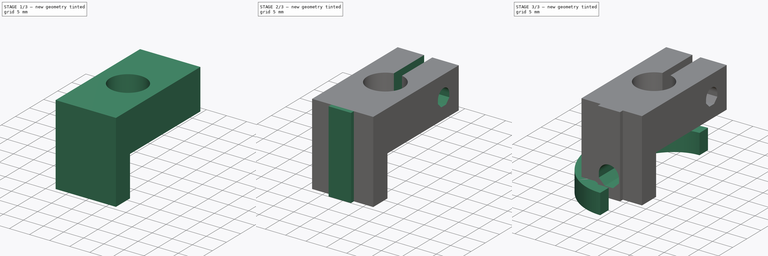
[diagram: build sequence overview — one tinted view per stage of 3, left to right]
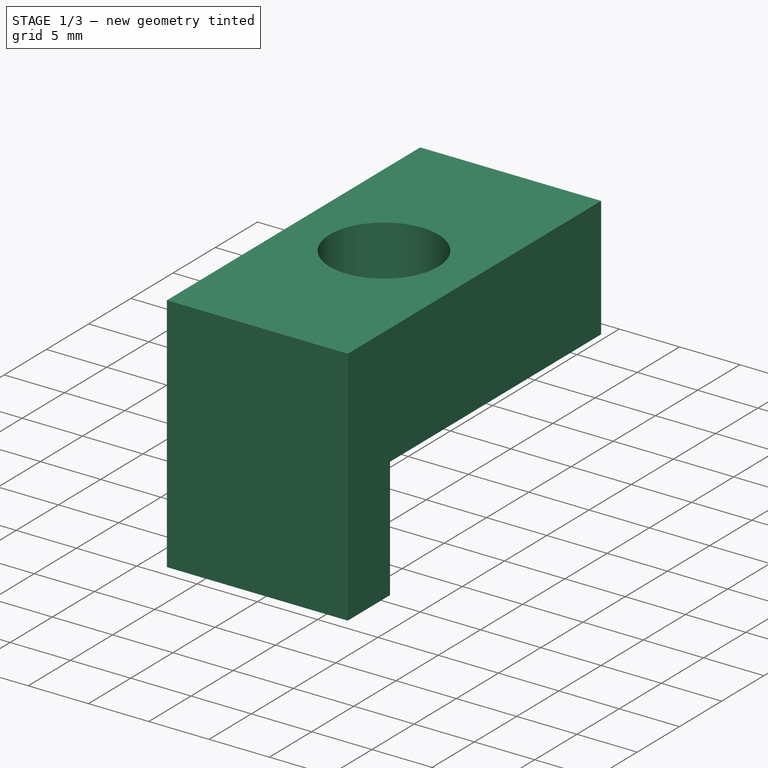
[diagram: stage 1 of 3 — iso view after this stage's code; geometry added in this stage tinted green]
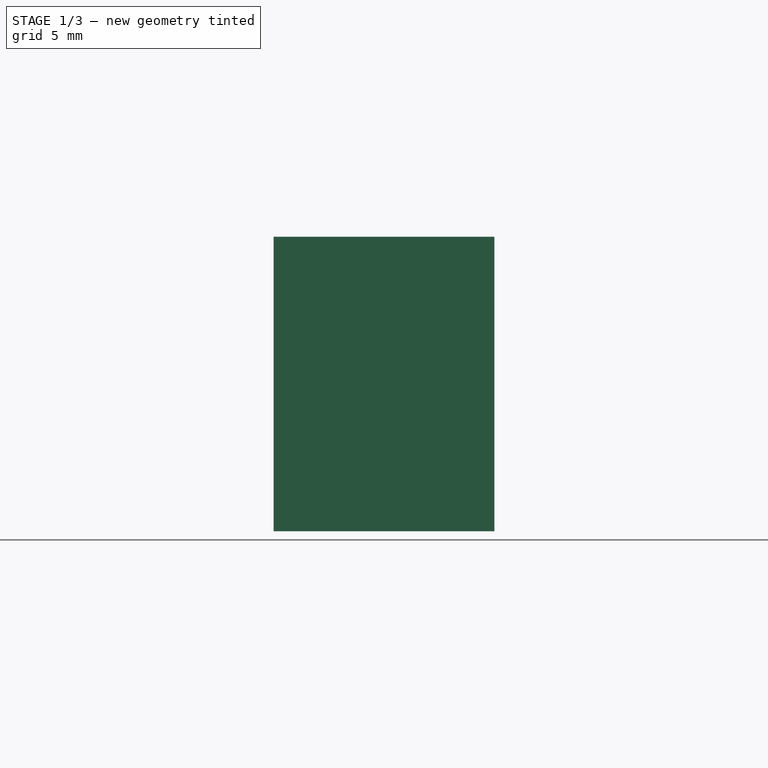
[diagram: stage 1 of 3 — front view after this stage's code; geometry added in this stage tinted green]
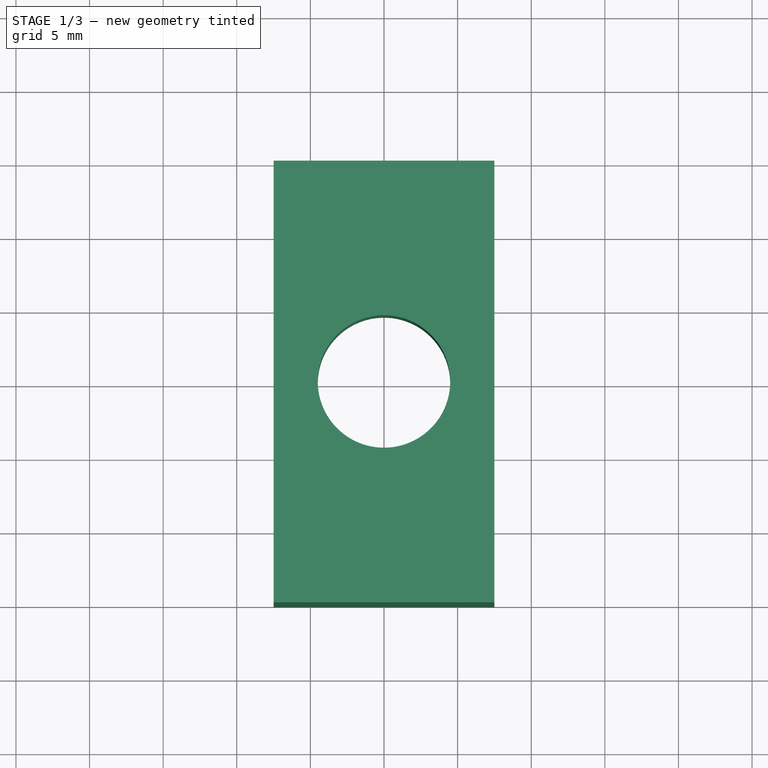
[diagram: stage 1 of 3 — top view after this stage's code; geometry added in this stage tinted green]
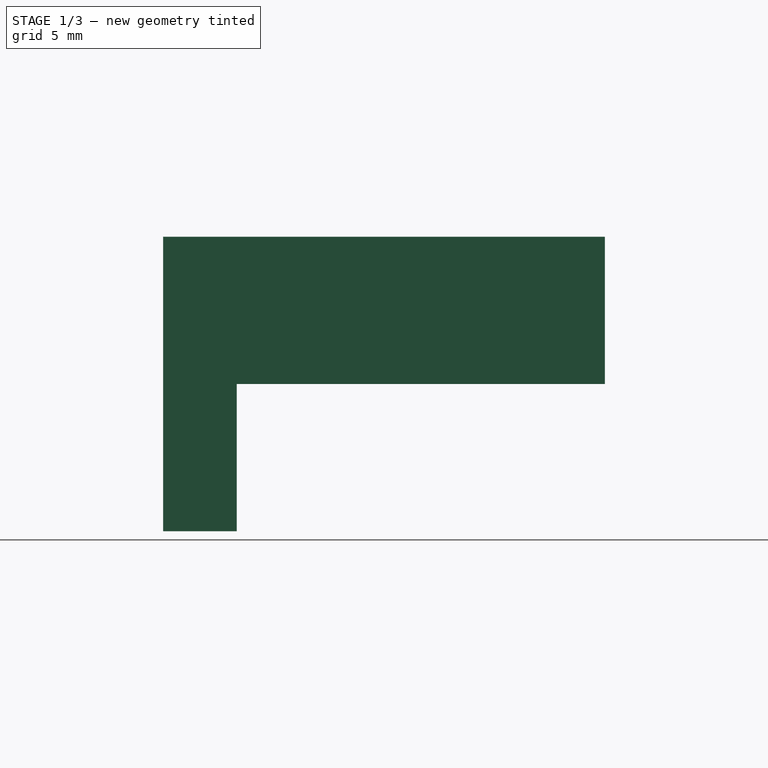
[diagram: stage 1 of 3 — right view after this stage's code; geometry added in this stage tinted green]
FCSTD DOCUMENT  (FreeCAD 0.16R5231 (Git))
Label: BuildPlatformMountingP2
License: All rights reserved
LicenseURL: http://en.wikipedia.org/wiki/All_rights_reserved
objects: Sketcher::SketchObject×8, PartDesign::Pocket×4, PartDesign::Pad×2, Part::Sweep×1, App::DocumentObjectGroup×1
note: 21 computed .brp shape members not serialized (recipe doc carries the construction recipe); baked Part::Feature solids carry a one-line shape summary decoded from their .brp

FEATURE [App::DocumentObjectGroup] Gruppe  label="bak"
  Group = -> [Sketch004,Sweep]
FEATURE [Sketcher::SketchObject] Sketch
  sketch-geometry (5):
    g0: Circle CenterX=0 CenterY=0 CenterZ=0 NormalX=0 NormalY=0 NormalZ=1 Radius=4.5
    g1: LineSegment StartX=-7.5 StartY=15 StartZ=0 EndX=7.5 EndY=15 EndZ=0
    g2: LineSegment StartX=7.5 StartY=15 StartZ=0 EndX=7.5 EndY=-15 EndZ=0
    g3: LineSegment StartX=7.5 StartY=-15 StartZ=0 EndX=-7.5 EndY=-15 EndZ=0
    g4: LineSegment StartX=-7.5 StartY=-15 StartZ=0 EndX=-7.5 EndY=15 EndZ=0
  constraints (14):
    c: Coincident(g0,g-1)
    c: Radius(g0) = 4.5
    c: Coincident(g1,g2)
    c: Coincident(g2,g3)
    c: Coincident(g3,g4)
    c: Coincident(g4,g1)
    c: Horizontal(g1)
    c: Horizontal(g3)
    c: Vertical(g2)
    c: Vertical(g4)
    c: DistanceX(g1) = 15
    c: DistanceY(g2) = -30
    c: DistanceY(g-1,g1) = 15
    c: Symmetric(g1,g1,g-2)
FEATURE [PartDesign::Pad] Pad
  Length = 20
  Length2 = 100
  Sketch = -> Sketch
  Type = 0
FEATURE [Sketcher::SketchObject] Sketch006
  ExternalGeometry = -> [Pad]
  Placement = pos=(0,0,0) rot=(1,0,0;3.14159rad)
  Support = -> Pad [Face6]
  sketch-geometry (4):
    g0: LineSegment StartX=-7.5 StartY=-15 StartZ=0 EndX=7.5 EndY=-15 EndZ=0
    g1: LineSegment StartX=7.5 StartY=-15 StartZ=0 EndX=7.5 EndY=10 EndZ=0
    g2: LineSegment StartX=7.5 StartY=10 StartZ=0 EndX=-7.5 EndY=10 EndZ=0
    g3: LineSegment StartX=-7.5 StartY=10 StartZ=0 EndX=-7.5 EndY=-15 EndZ=0
  constraints (11):
    c: Coincident(g0,g1)
    c: Coincident(g1,g2)
    c: Coincident(g2,g3)
    c: Coincident(g3,g0)
    c: Horizontal(g0)
    c: Horizontal(g2)
    c: Vertical(g1)
    c: Vertical(g3)
    c: Coincident(g0,g-4)
    c: PointOnObject(g1,g-5)
    c: DistanceY(g1) = 25
FEATURE [PartDesign::Pocket] Pocket
  Length = 10
  Sketch = -> Sketch006
  Type = 0
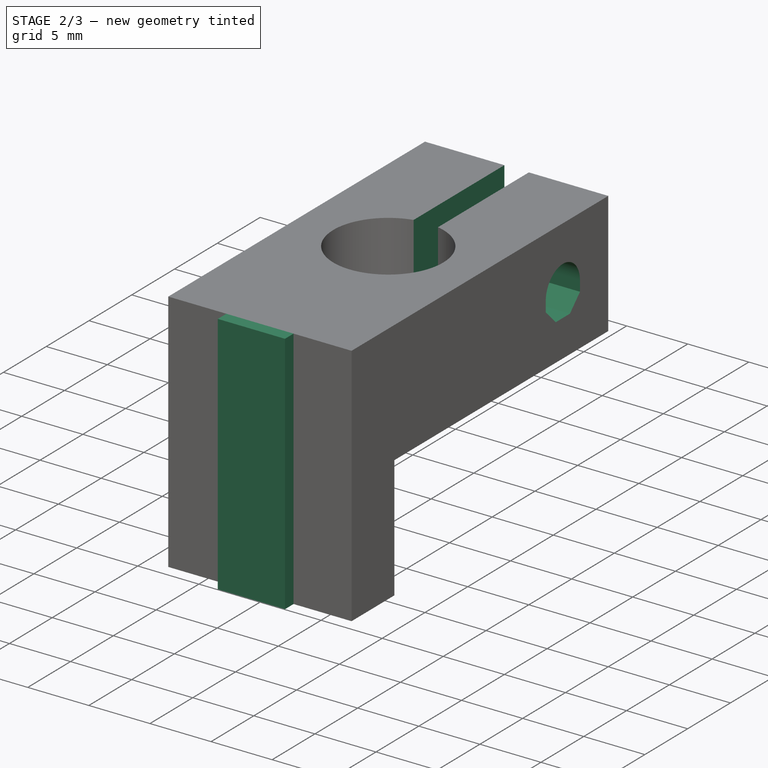
[diagram: stage 2 of 3 — iso view after this stage's code; geometry added in this stage tinted green]
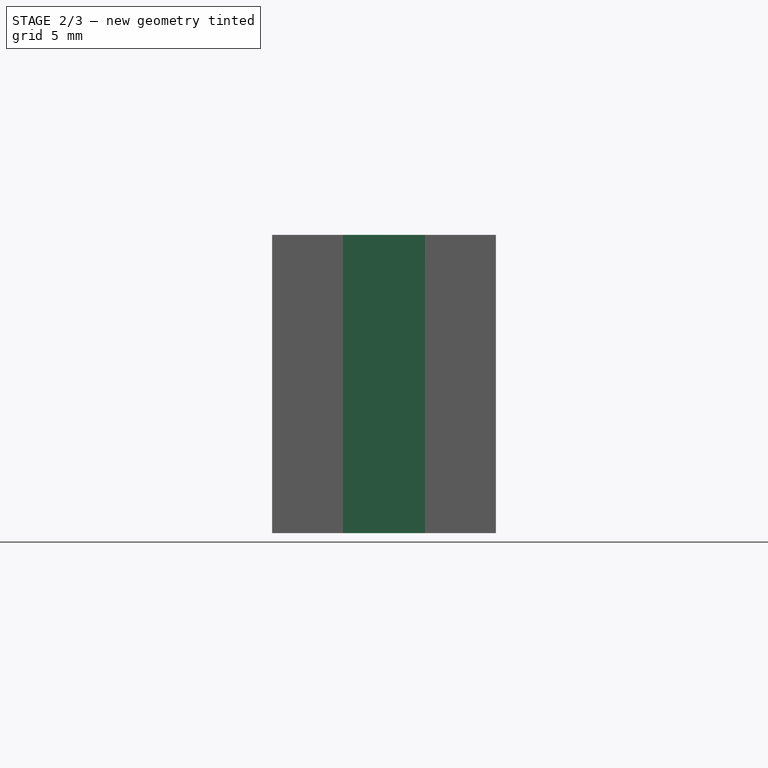
[diagram: stage 2 of 3 — front view after this stage's code; geometry added in this stage tinted green]
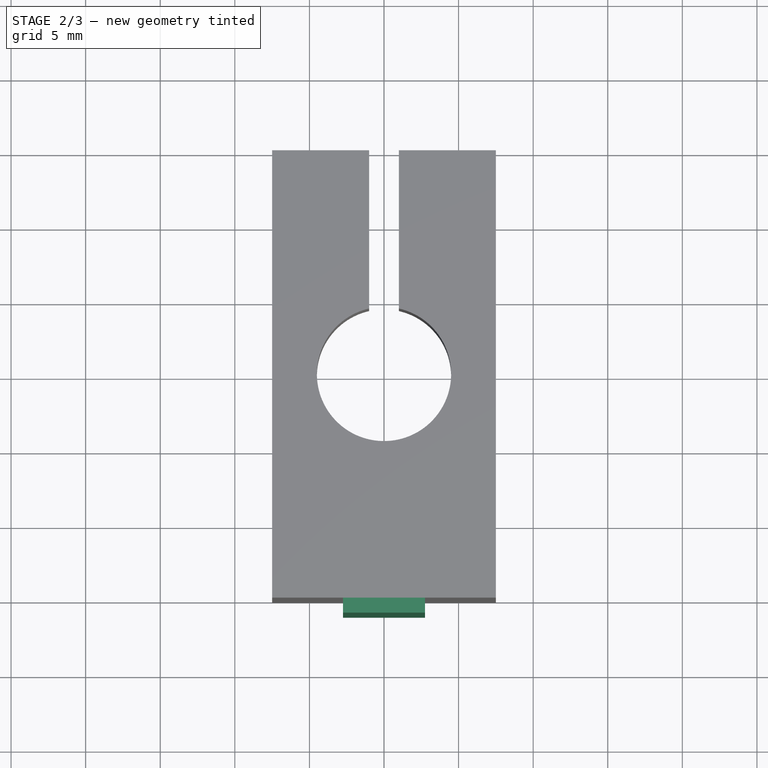
[diagram: stage 2 of 3 — top view after this stage's code; geometry added in this stage tinted green]
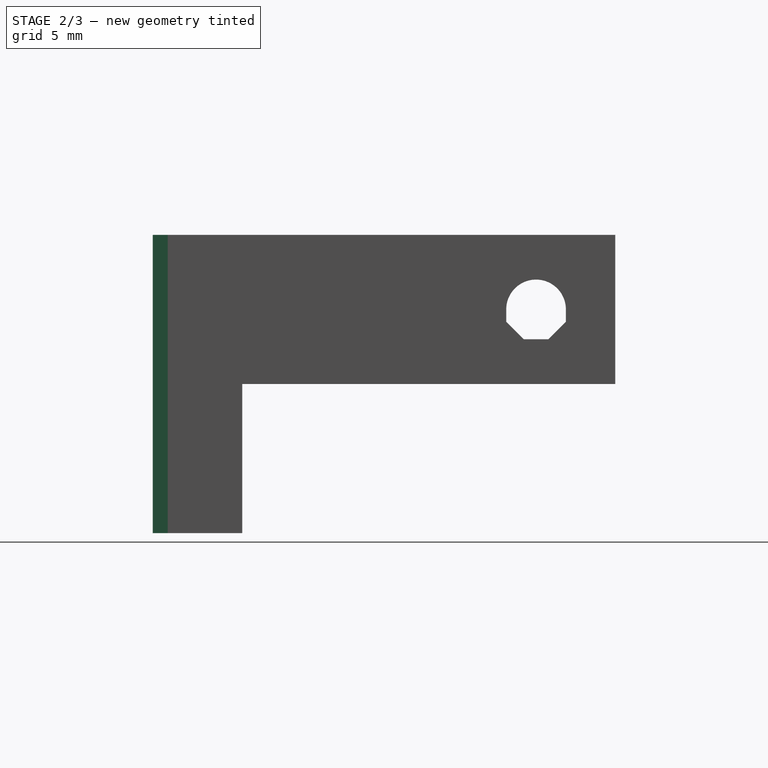
[diagram: stage 2 of 3 — right view after this stage's code; geometry added in this stage tinted green]
FEATURE [Sketcher::SketchObject] Sketch007
  ExternalGeometry = -> [Pocket]
  Placement = pos=(0,0,20) rot=(0,0,1;0rad)
  Support = -> Pocket [Face4]
  sketch-geometry (4):
    g0: LineSegment StartX=-1 StartY=15 StartZ=0 EndX=1 EndY=15 EndZ=0
    g1: LineSegment StartX=1 StartY=15 StartZ=0 EndX=1 EndY=0 EndZ=0
    g2: LineSegment StartX=1 StartY=0 StartZ=0 EndX=-1 EndY=0 EndZ=0
    g3: LineSegment StartX=-1 StartY=0 StartZ=0 EndX=-1 EndY=15 EndZ=0
  constraints (12):
    c: Coincident(g0,g1)
    c: Coincident(g1,g2)
    c: Coincident(g2,g3)
    c: Coincident(g3,g0)
    c: Horizontal(g0)
    c: Horizontal(g2)
    c: Vertical(g1)
    c: Vertical(g3)
    c: PointOnObject(g0,g-3)
    c: PointOnObject(g1,g-1)
    c: Symmetric(g0,g0,g-2)
    c: DistanceX(g2) = -2
FEATURE [PartDesign::Pocket] Pocket001
  Length = 10
  Sketch = -> Sketch007
  Type = 0
FEATURE [Sketcher::SketchObject] Sketch010
  ExternalGeometry = -> [Pocket001]
  Placement = pos=(0,-15,0) rot=(1,0,0;1.5708rad)
  Support = -> Pocket001 [Face12]
  sketch-geometry (7):
    g0: LineSegment StartX=-2.75 StartY=20 StartZ=0 EndX=2.75 EndY=20 EndZ=0
    g1: LineSegment StartX=2.75 StartY=20 StartZ=0 EndX=2.75 EndY=0 EndZ=0
    g2: LineSegment StartX=2.75 StartY=0 StartZ=0 EndX=-2.75 EndY=0 EndZ=0
    g3: LineSegment StartX=-2.75 StartY=0 StartZ=0 EndX=-2.75 EndY=20 EndZ=0
    g4: LineSegment [constr] StartX=-7.5 StartY=10 StartZ=0 EndX=-2.75 EndY=10 EndZ=0
    g5: LineSegment [constr] StartX=2.75 StartY=10 StartZ=0 EndX=7.5 EndY=10 EndZ=0
    g6: LineSegment [constr] StartX=-2.75 StartY=10 StartZ=0 EndX=2.75 EndY=10 EndZ=0
  constraints (22):
    c: Coincident(g0,g1)
    c: Coincident(g1,g2)
    c: Coincident(g2,g3)
    c: Coincident(g3,g0)
    c: Horizontal(g0)
    c: Horizontal(g2)
    c: Vertical(g1)
    c: Vertical(g3)
    c: PointOnObject(g0,g-3)
    c: PointOnObject(g1,g-4)
    c: DistanceX(g0) = 5.5
    c: PointOnObject(g4,g-6)
    c: PointOnObject(g4,g3)
    c: Horizontal(g4)
    c: PointOnObject(g5,g1)
    c: PointOnObject(g5,g-5)
    c: Horizontal(g5)
    c: Equal(g5,g4)
    c: Symmetric(g-5,g-5,g5)
    c: Coincident(g6,g4)
    c: Coincident(g6,g5)
    c: Horizontal(g6)
FEATURE [PartDesign::Pad] Pad001
  Length = 1
  Length2 = 100
  Sketch = -> Sketch010
  Type = 0
FEATURE [Sketcher::SketchObject] Sketch009
  ExternalGeometry = -> [Pad001]
  Placement = pos=(7.5,0,0) rot=(0.57735,0.57735,0.57735;2.0944rad)
  Support = -> Pad001 [Face10]
  sketch-geometry (9):
    g0: LineSegment [constr] StartX=15 StartY=20 StartZ=0 EndX=4.38748 EndY=10 EndZ=0
    g1: ArcOfCircle CenterX=9.69374 CenterY=15 CenterZ=0 NormalX=0 NormalY=0 NormalZ=1 Radius=2 StartAngle=0 EndAngle=3.14159
    g2: LineSegment [constr] StartX=7.69374 StartY=15 StartZ=0 EndX=11.6937 EndY=15 EndZ=0
    g3: ArcOfCircle [constr] CenterX=9.69374 CenterY=15 CenterZ=0 NormalX=0 NormalY=0 NormalZ=1 Radius=2 StartAngle=3.14159 EndAngle=6.28319
    g4: LineSegment StartX=11.6937 StartY=15 StartZ=0 EndX=11.6937 EndY=14.1716 EndZ=0
    g5: LineSegment StartX=7.69374 StartY=15 StartZ=0 EndX=7.69374 EndY=14.1716 EndZ=0
    g6: LineSegment StartX=11.6937 StartY=14.1716 StartZ=0 EndX=10.5222 EndY=13 EndZ=0
    g7: LineSegment StartX=7.69374 StartY=14.1716 StartZ=0 EndX=8.86531 EndY=13 EndZ=0
    g8: LineSegment StartX=8.86531 StartY=13 StartZ=0 EndX=10.5222 EndY=13 EndZ=0
  constraints (27):
    c: PointOnObject(g1,g0)
    c: Symmetric(g0,g0,g1)
    c: Coincident(g2,g1)
    c: Coincident(g2,g1)
    c: Horizontal(g2)
    c: PointOnObject(g1,g2)
    c: Radius(g1) = 2
    c: Coincident(g3,g1)
    c: Coincident(g3,g1)
    c: PointOnObject(g3,g2)
    c: Coincident(g4,g1)
    c: Vertical(g4)
    c: Coincident(g5,g1)
    c: Vertical(g5)
    c: Coincident(g6,g4)
    c: Coincident(g7,g5)
    c: Coincident(g8,g7)
    c: Coincident(g8,g6)
    c: Horizontal(g8)
    c: Tangent(g3,g8)
    c: Tangent(g7,g3)
    c: Tangent(g3,g6)
    c: Equal(g7,g8)
    c: Equal(g8,g6)
    c: Equal(g5,g4)
    c: Coincident(g0,g-3)
    c: Coincident(g0,g-4)
FEATURE [PartDesign::Pocket] Pocket002
  Length = 5
  Sketch = -> Sketch009
  Type = 1
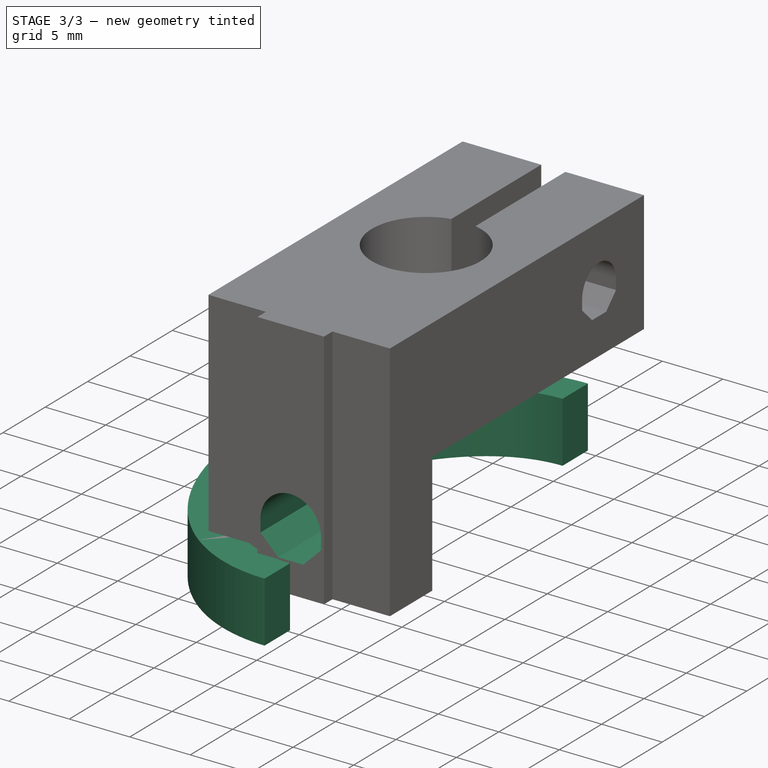
[diagram: stage 3 of 3 — iso view after this stage's code; geometry added in this stage tinted green]
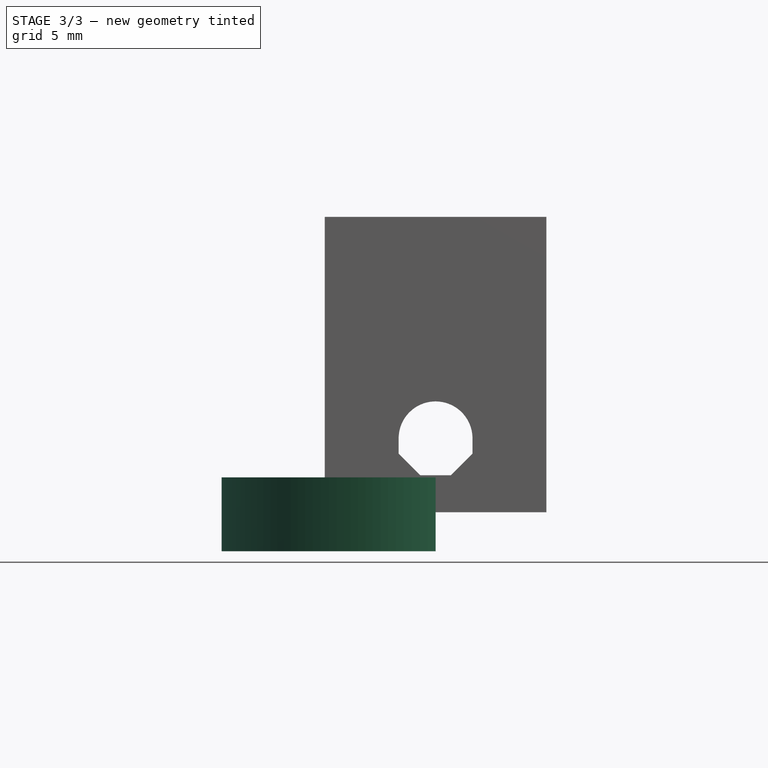
[diagram: stage 3 of 3 — front view after this stage's code; geometry added in this stage tinted green]
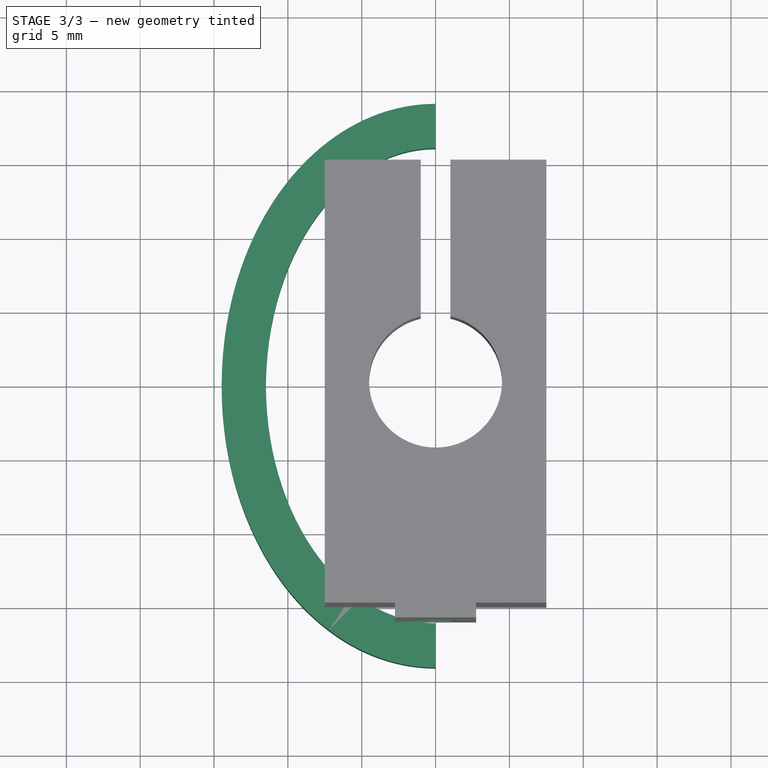
[diagram: stage 3 of 3 — top view after this stage's code; geometry added in this stage tinted green]
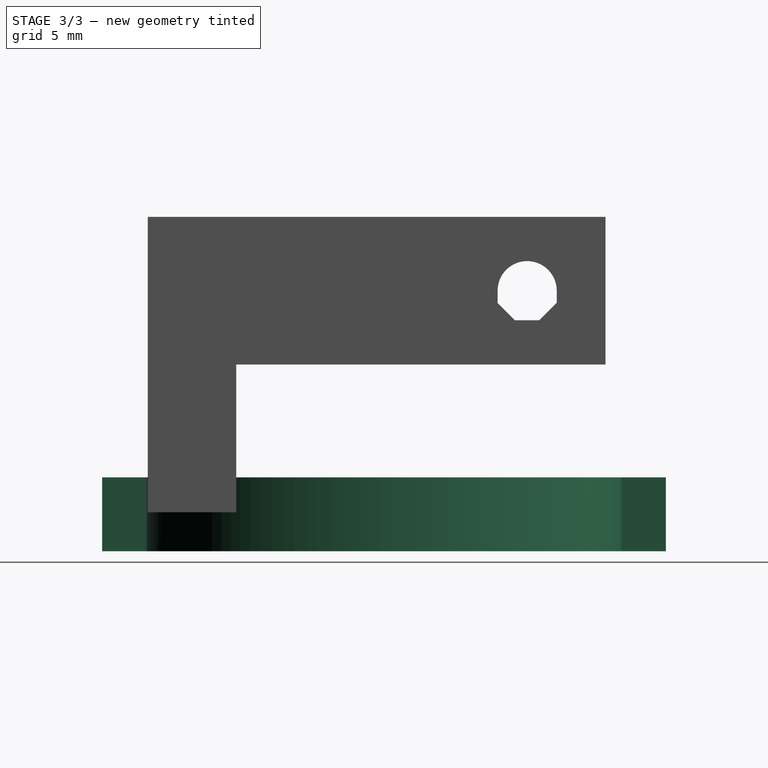
[diagram: stage 3 of 3 — right view after this stage's code; geometry added in this stage tinted green]
FEATURE [Sketcher::SketchObject] Sketch004
  sketch-geometry (5):
    g0: ArcOfEllipse CenterX=0 CenterY=0 CenterZ=0 NormalX=0 NormalY=0 NormalZ=1 MajorRadius=17.5 MinorRadius=12.9 AngleXU=1.5708 StartAngle=0 EndAngle=3.14159
    g1: LineSegment [constr] StartX=0 StartY=17.5 StartZ=0 EndX=0 EndY=-17.5 EndZ=0
    g2: LineSegment [constr] StartX=-12.9 StartY=0 StartZ=0 EndX=12.9 EndY=0 EndZ=0
    g3: GeomPoint [constr] X=0 Y=11.8254 Z=0
    g4: GeomPoint [constr] X=0 Y=-11.8254 Z=0
  constraints (7):
    c: InternalAlignment(g1-g4 -> g0) x4
    c: Coincident(g0,g-1)
    c: PointOnObject(g0,g-2)
    c: PointOnObject(g0,g-2)
    c: PointOnObject(g2,g-1)
    c: DistanceX(g-1,g2) = -12.9
    c: DistanceY(g0,g0) = -35
FEATURE [Sketcher::SketchObject] Sketch005
  Placement = pos=(0,0,0) rot=(0.57735,0.57735,0.57735;2.0944rad)
  sketch-geometry (6):
    g0: LineSegment StartX=-19.0842 StartY=2.35963 StartZ=0 EndX=-16.0842 EndY=2.35963 EndZ=0
    g1: LineSegment StartX=-16.0842 StartY=2.35963 StartZ=0 EndX=-16.0842 EndY=-2.64037 EndZ=0
    g2: LineSegment StartX=-16.0842 StartY=-2.64037 StartZ=0 EndX=-19.0842 EndY=-2.64037 EndZ=0
    g3: LineSegment StartX=-19.0842 StartY=-2.64037 StartZ=0 EndX=-19.0842 EndY=2.35963 EndZ=0
    g4: LineSegment [constr] StartX=-16.0842 StartY=2.35963 StartZ=0 EndX=-19.0842 EndY=-2.64037 EndZ=0
    g5: LineSegment [constr] StartX=-17.5 StartY=0 StartZ=0 EndX=0 EndY=0 EndZ=0
  constraints (16):
    c: Coincident(g0,g1)
    c: Coincident(g1,g2)
    c: Coincident(g2,g3)
    c: Coincident(g3,g0)
    c: Horizontal(g0)
    c: Horizontal(g2)
    c: Vertical(g1)
    c: Vertical(g3)
    c: DistanceY(g3) = 5
    c: DistanceX(g0) = 3
    c: Coincident(g4,g0)
    c: Coincident(g4,g2)
    c: PointOnObject(g5,g4)
    c: Coincident(g5,g-1)
    c: Horizontal(g5)
    c: DistanceX(g5) = 17.5
FEATURE [Part::Sweep] Sweep
  Frenet = false
  Sections = -> [Sketch005]
  Solid = true
  Spine = -> Sketch004
  Transition = 1
FEATURE [Sketcher::SketchObject] Sketch008
  ExternalGeometry = -> [Pocket002]
  Placement = pos=(0,-16,0) rot=(1,0,0;1.5708rad)
  Support = -> Pocket002 [Face29]
  sketch-geometry (9):
    g0: LineSegment [constr] StartX=-7.5 StartY=0 StartZ=0 EndX=7.5 EndY=10 EndZ=0
    g1: ArcOfCircle CenterX=0 CenterY=5 CenterZ=0 NormalX=0 NormalY=0 NormalZ=1 Radius=2.5 StartAngle=0 EndAngle=3.14159
    g2: LineSegment [constr] StartX=-2.5 StartY=5 StartZ=0 EndX=2.5 EndY=5 EndZ=0
    g3: ArcOfCircle [constr] CenterX=0 CenterY=5 CenterZ=0 NormalX=0 NormalY=0 NormalZ=1 Radius=2.5 StartAngle=3.14159 EndAngle=6.28319
    g4: LineSegment StartX=-2.5 StartY=5 StartZ=0 EndX=-2.5 EndY=3.96447 EndZ=0
    g5: LineSegment StartX=-2.5 StartY=3.96447 StartZ=0 EndX=-1.03553 EndY=2.5 EndZ=0
    g6: LineSegment StartX=-1.03553 StartY=2.5 StartZ=0 EndX=1.03553 EndY=2.5 EndZ=0
    g7: LineSegment StartX=1.03553 StartY=2.5 StartZ=0 EndX=2.5 EndY=3.96447 EndZ=0
    g8: LineSegment StartX=2.5 StartY=3.96447 StartZ=0 EndX=2.5 EndY=5 EndZ=0
  constraints (26):
    c: PointOnObject(g1,g0)
    c: Symmetric(g0,g0,g1)
    c: Coincident(g2,g1)
    c: Coincident(g2,g1)
    c: Horizontal(g2)
    c: PointOnObject(g1,g2)
    c: Radius(g1) = 2.5
    c: Coincident(g3,g1)
    c: Coincident(g3,g1)
    c: PointOnObject(g3,g2)
    c: Coincident(g4,g1)
    c: Vertical(g4)
    c: Coincident(g5,g4)
    c: Coincident(g6,g5)
    c: Horizontal(g6)
    c: Coincident(g7,g6)
    c: Coincident(g8,g7)
    c: Coincident(g8,g1)
    c: Vertical(g8)
    c: Equal(g5,g6)
    c: Equal(g6,g7)
    c: Equal(g8,g4)
    c: Tangent(g6,g3)
    c: Tangent(g7,g3)
    c: Coincident(g0,g-3)
    c: Coincident(g0,g-4)
FEATURE [PartDesign::Pocket] Pocket003
  Length = 5
  Sketch = -> Sketch008
  Type = 1
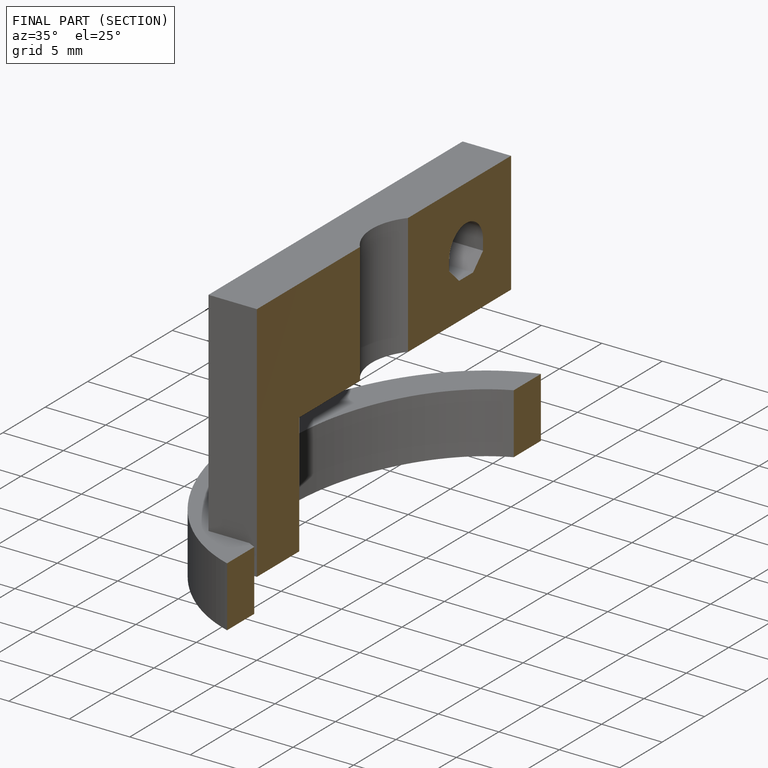
[diagram: finished part — half-section view (interior)]
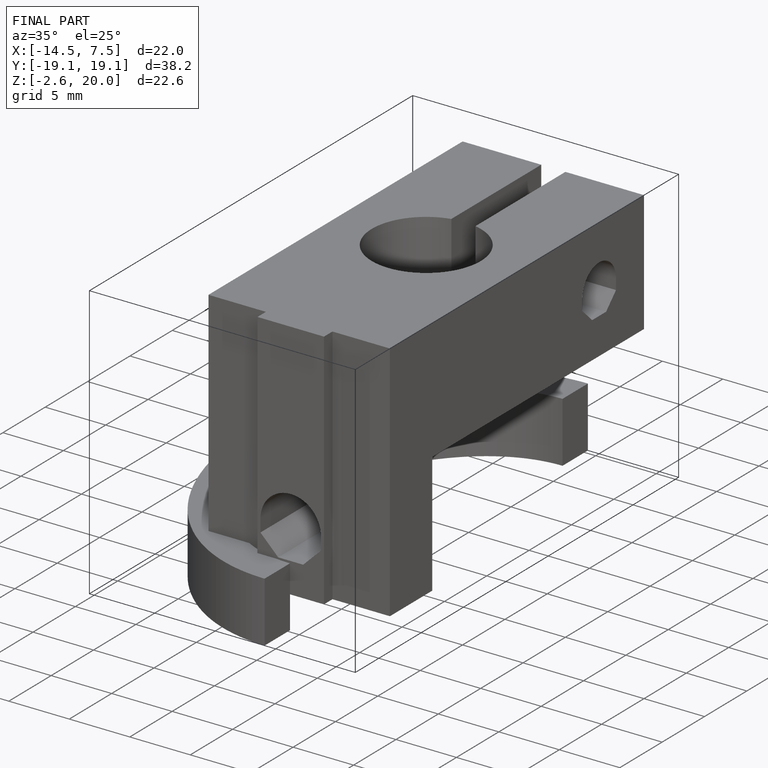
[diagram: finished part — iso view with bounding-box wireframe]
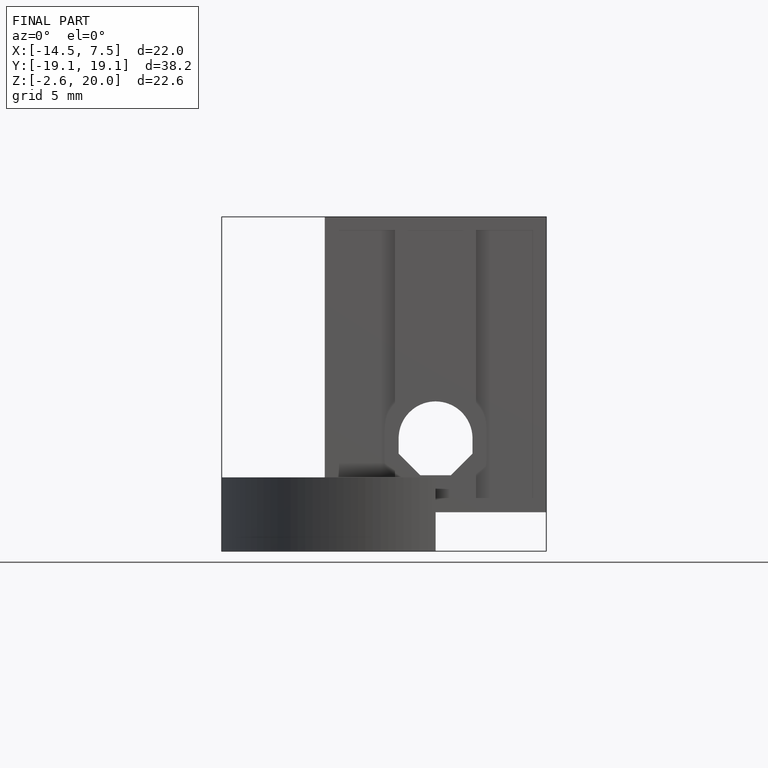
[diagram: finished part — front view with bounding-box wireframe]
